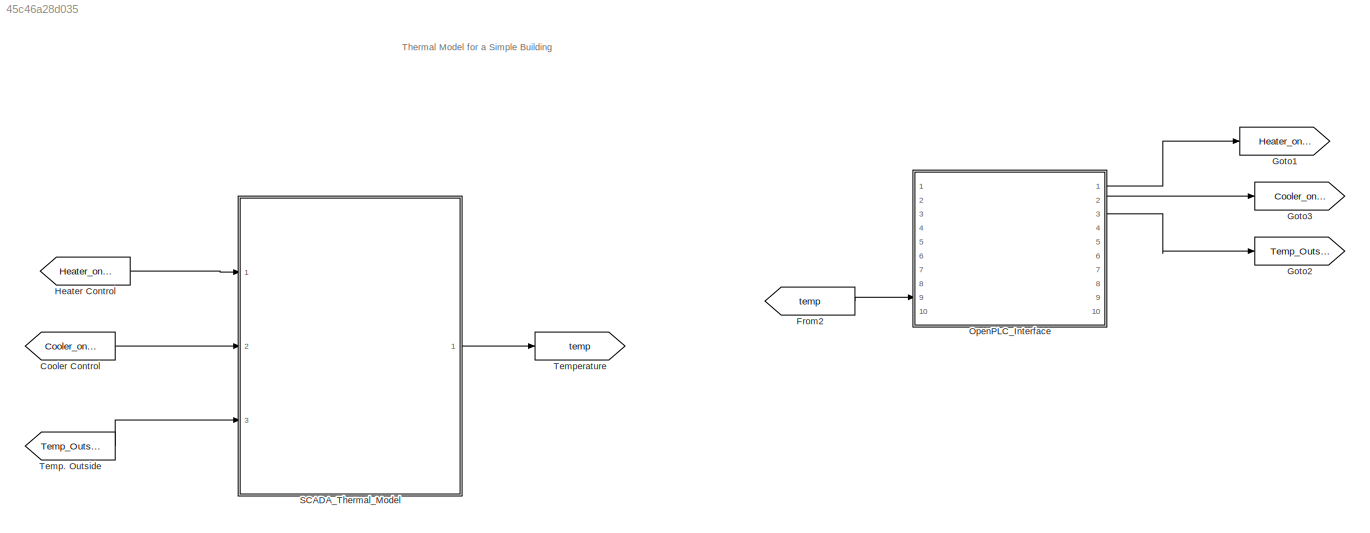
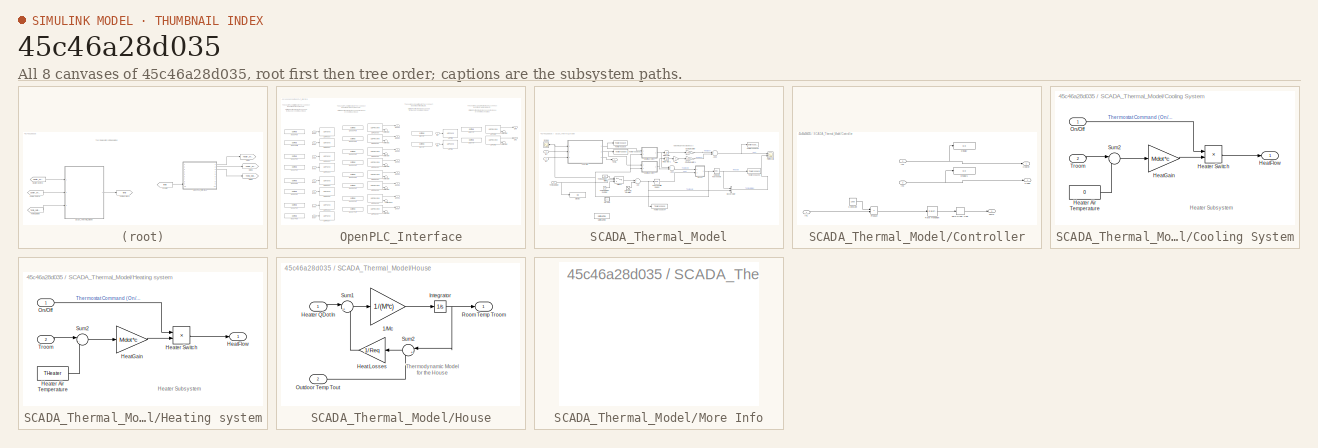
[diagram: thumbnail index - all 8 canvases of the model, root first then tree order]
MODEL slx_45c46a28d035
KIND model
CONFIG AbsTol = 1e-6
CONFIG EnableMultiTasking = off
CONFIG FixedStep = auto
CONFIG MaxStep = auto
CONFIG MinStep = auto
CONFIG RelTol = 1e-3
CONFIG SampleTimeConstraint = Unconstrained
CONFIG Solver = FixedStepAuto
CONFIG SolverName = FixedStepAuto
CONFIG StartTime = 0.0
CONFIG StopTime = inf
WORKSPACE source: MATLAB code (in-file) + mxarray member
WORKSPACE code: sldemo_househeat_data
WORKSPACE LWall = 0.2
WORKSPACE LWindow = 0.01
WORKSPACE M = 1778.36911446
WORKSPACE Mdot = 3600
WORKSPACE PLC_IP_Address = 'localhost'
WORKSPACE RWall = 1.52148180317e-06
WORKSPACE RWindow = 5.93542260209e-07
WORKSPACE Req = 4.26975637751e-07
WORKSPACE THeater = 50
WORKSPACE TinIC = 20
WORKSPACE c = 1005.4
WORKSPACE cost = 2.5e-08
WORKSPACE densAir = 1.225
WORKSPACE htHouse = 4
WORKSPACE htWindows = 1
WORKSPACE kWall = 136.8
WORKSPACE kWindow = 2808
WORKSPACE lenHouse = 30
WORKSPACE numWindows = 6
WORKSPACE pitRoof = 0.698131700798
WORKSPACE r2d = 57.2957795131
WORKSPACE wallArea = 960.897659797
WORKSPACE widHouse = 10
WORKSPACE widWindows = 1
WORKSPACE windowArea = 6
BLOCK [From] Cooler Control 
  GotoTag = Cooler_onoff
BLOCK [From] From2
  GotoTag = temp
BLOCK [Goto] Goto1
  GotoTag = Heater_onoff
BLOCK [Goto] Goto2
  GotoTag = Temp_Outside
BLOCK [Goto] Goto3
  GotoTag = Cooler_onoff
BLOCK [From] Heater Control
  GotoTag = Heater_onoff
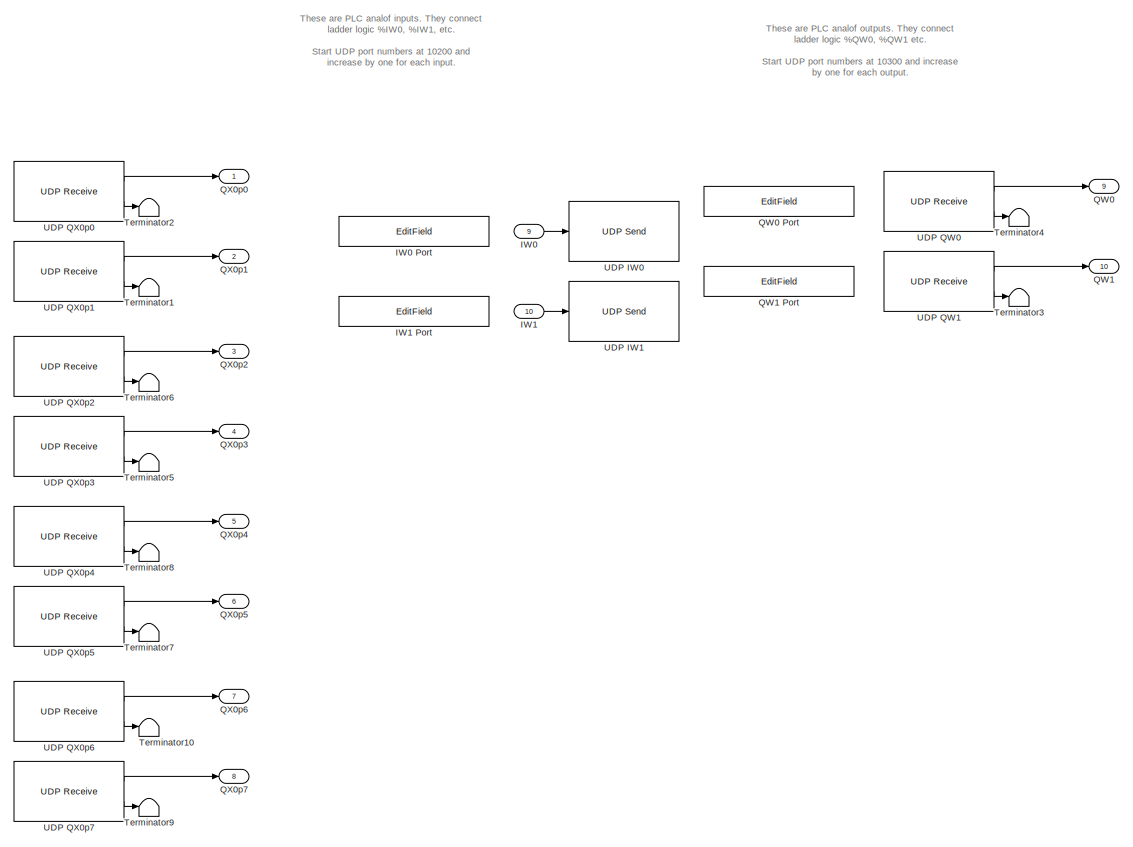
[diagram: OpenPLC_Interface - part 1/2, right side, full height]
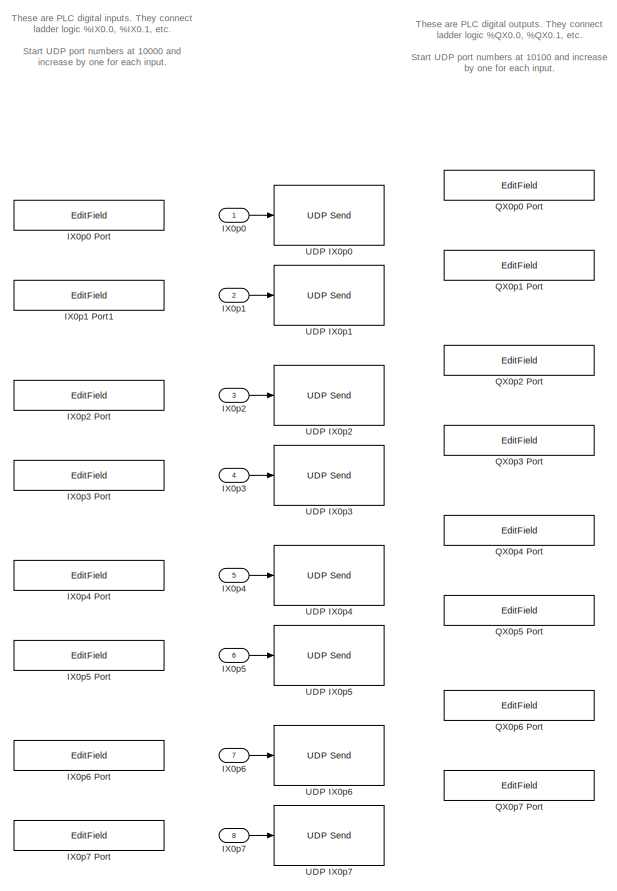
[diagram: OpenPLC_Interface - part 2/2, left side, full height]
BLOCK [SubSystem] OpenPLC_Interface
  Ports = [10, 10]
  RequestExecContextInheritance = off
BLOCK [Inport] OpenPLC_Interface/IW0
  IconDisplay = Port number
  Port = 9
BLOCK [EditField] OpenPLC_Interface/IW0 Port
  Alignment = Center
  LabelPosition = Hide
  ShowInitialText = on
BLOCK [Inport] OpenPLC_Interface/IW1
  IconDisplay = Port number
  Port = 10
BLOCK [EditField] OpenPLC_Interface/IW1 Port
  Alignment = Center
  LabelPosition = Hide
  ShowInitialText = on
BLOCK [Inport] OpenPLC_Interface/IX0p0 
  IconDisplay = Port number
BLOCK [EditField] OpenPLC_Interface/IX0p0 Port
  Alignment = Center
  LabelPosition = Hide
  ShowInitialText = on
BLOCK [Inport] OpenPLC_Interface/IX0p1
  IconDisplay = Port number
  Port = 2
BLOCK [EditField] OpenPLC_Interface/IX0p1 Port1
  Alignment = Center
  LabelPosition = Hide
  ShowInitialText = on
BLOCK [Inport] OpenPLC_Interface/IX0p2
  IconDisplay = Port number
  Port = 3
BLOCK [EditField] OpenPLC_Interface/IX0p2 Port
  Alignment = Center
  LabelPosition = Hide
  ShowInitialText = on
BLOCK [Inport] OpenPLC_Interface/IX0p3
  IconDisplay = Port number
  Port = 4
BLOCK [EditField] OpenPLC_Interface/IX0p3 Port
  Alignment = Center
  LabelPosition = Hide
  ShowInitialText = on
BLOCK [Inport] OpenPLC_Interface/IX0p4
  IconDisplay = Port number
  Port = 5
BLOCK [EditField] OpenPLC_Interface/IX0p4 Port
  Alignment = Center
  LabelPosition = Hide
  ShowInitialText = on
BLOCK [Inport] OpenPLC_Interface/IX0p5
  IconDisplay = Port number
  Port = 6
BLOCK [EditField] OpenPLC_Interface/IX0p5 Port
  Alignment = Center
  LabelPosition = Hide
  ShowInitialText = on
BLOCK [Inport] OpenPLC_Interface/IX0p6
  IconDisplay = Port number
  Port = 7
BLOCK [EditField] OpenPLC_Interface/IX0p6 Port
  Alignment = Center
  LabelPosition = Hide
  ShowInitialText = on
BLOCK [Inport] OpenPLC_Interface/IX0p7
  IconDisplay = Port number
  Port = 8
BLOCK [EditField] OpenPLC_Interface/IX0p7 Port
  Alignment = Center
  LabelPosition = Hide
  ShowInitialText = on
BLOCK [Outport] OpenPLC_Interface/QW0
  IconDisplay = Port number
  Port = 9
BLOCK [EditField] OpenPLC_Interface/QW0 Port
  Alignment = Center
  LabelPosition = Hide
  ShowInitialText = on
BLOCK [Outport] OpenPLC_Interface/QW1
  IconDisplay = Port number
  Port = 10
BLOCK [EditField] OpenPLC_Interface/QW1 Port
  Alignment = Center
  LabelPosition = Hide
  ShowInitialText = on
BLOCK [Outport] OpenPLC_Interface/QX0p0
  IconDisplay = Port number
BLOCK [EditField] OpenPLC_Interface/QX0p0 Port
  Alignment = Center
  LabelPosition = Hide
  ShowInitialText = on
BLOCK [Outport] OpenPLC_Interface/QX0p1
  IconDisplay = Port number
  Port = 2
BLOCK [EditField] OpenPLC_Interface/QX0p1 Port
  Alignment = Center
  LabelPosition = Hide
  ShowInitialText = on
BLOCK [Outport] OpenPLC_Interface/QX0p2
  IconDisplay = Port number
  Port = 3
BLOCK [EditField] OpenPLC_Interface/QX0p2 Port
  Alignment = Center
  LabelPosition = Hide
  ShowInitialText = on
BLOCK [Outport] OpenPLC_Interface/QX0p3
  IconDisplay = Port number
  Port = 4
BLOCK [EditField] OpenPLC_Interface/QX0p3 Port
  Alignment = Center
  LabelPosition = Hide
  ShowInitialText = on
BLOCK [Outport] OpenPLC_Interface/QX0p4
  IconDisplay = Port number
  Port = 5
BLOCK [EditField] OpenPLC_Interface/QX0p4 Port
  Alignment = Center
  LabelPosition = Hide
  ShowInitialText = on
BLOCK [Outport] OpenPLC_Interface/QX0p5
  IconDisplay = Port number
  Port = 6
BLOCK [EditField] OpenPLC_Interface/QX0p5 Port
  Alignment = Center
  LabelPosition = Hide
  ShowInitialText = on
BLOCK [Outport] OpenPLC_Interface/QX0p6
  IconDisplay = Port number
  Port = 7
BLOCK [EditField] OpenPLC_Interface/QX0p6 Port
  Alignment = Center
  LabelPosition = Hide
  ShowInitialText = on
BLOCK [Outport] OpenPLC_Interface/QX0p7
  IconDisplay = Port number
  Port = 8
BLOCK [EditField] OpenPLC_Interface/QX0p7 Port
  Alignment = Center
  LabelPosition = Hide
  ShowInitialText = on
BLOCK [Terminator] OpenPLC_Interface/Terminator1
BLOCK [Terminator] OpenPLC_Interface/Terminator10
BLOCK [Terminator] OpenPLC_Interface/Terminator2
BLOCK [Terminator] OpenPLC_Interface/Terminator3
BLOCK [Terminator] OpenPLC_Interface/Terminator4
BLOCK [Terminator] OpenPLC_Interface/Terminator5
BLOCK [Terminator] OpenPLC_Interface/Terminator6
BLOCK [Terminator] OpenPLC_Interface/Terminator7
BLOCK [Terminator] OpenPLC_Interface/Terminator8
BLOCK [Terminator] OpenPLC_Interface/Terminator9
BLOCK [Reference] OpenPLC_Interface/UDP IW0  REF=dspnetwork/UDP Send
  Ports = [1]
  SourceBlock = dspnetwork/UDP Send
  SourceProductBaseCode = DS
  SourceProductName = DSP System Toolbox
  SourceType = UDP Send
BLOCK [Reference] OpenPLC_Interface/UDP IW1  REF=dspnetwork/UDP Send
  Ports = [1]
  SourceBlock = dspnetwork/UDP Send
  SourceProductBaseCode = DS
  SourceProductName = DSP System Toolbox
  SourceType = UDP Send
BLOCK [Reference] OpenPLC_Interface/UDP IX0p0  REF=dspnetwork/UDP Send
  Ports = [1]
  SourceBlock = dspnetwork/UDP Send
  SourceProductBaseCode = DS
  SourceProductName = DSP System Toolbox
  SourceType = UDP Send
BLOCK [Reference] OpenPLC_Interface/UDP IX0p1  REF=dspnetwork/UDP Send
  Ports = [1]
  SourceBlock = dspnetwork/UDP Send
  SourceProductBaseCode = DS
  SourceProductName = DSP System Toolbox
  SourceType = UDP Send
BLOCK [Reference] OpenPLC_Interface/UDP IX0p2  REF=dspnetwork/UDP Send
  Ports = [1]
  SourceBlock = dspnetwork/UDP Send
  SourceProductBaseCode = DS
  SourceProductName = DSP System Toolbox
  SourceType = UDP Send
BLOCK [Reference] OpenPLC_Interface/UDP IX0p3  REF=dspnetwork/UDP Send
  Ports = [1]
  SourceBlock = dspnetwork/UDP Send
  SourceProductBaseCode = DS
  SourceProductName = DSP System Toolbox
  SourceType = UDP Send
BLOCK [Reference] OpenPLC_Interface/UDP IX0p4  REF=dspnetwork/UDP Send
  Ports = [1]
  SourceBlock = dspnetwork/UDP Send
  SourceProductBaseCode = DS
  SourceProductName = DSP System Toolbox
  SourceType = UDP Send
BLOCK [Reference] OpenPLC_Interface/UDP IX0p5  REF=dspnetwork/UDP Send
  Ports = [1]
  SourceBlock = dspnetwork/UDP Send
  SourceProductBaseCode = DS
  SourceProductName = DSP System Toolbox
  SourceType = UDP Send
BLOCK [Reference] OpenPLC_Interface/UDP IX0p6  REF=dspnetwork/UDP Send
  Ports = [1]
  SourceBlock = dspnetwork/UDP Send
  SourceProductBaseCode = DS
  SourceProductName = DSP System Toolbox
  SourceType = UDP Send
BLOCK [Reference] OpenPLC_Interface/UDP IX0p7  REF=dspnetwork/UDP Send
  Ports = [1]
  SourceBlock = dspnetwork/UDP Send
  SourceProductBaseCode = DS
  SourceProductName = DSP System Toolbox
  SourceType = UDP Send
BLOCK [Reference] OpenPLC_Interface/UDP QW0  REF=dspnetwork/UDP Receive
  Ports = [0, 2]
  SourceBlock = dspnetwork/UDP Receive
  SourceProductBaseCode = DS
  SourceProductName = DSP System Toolbox
  SourceType = UDP Receive
BLOCK [Reference] OpenPLC_Interface/UDP QW1  REF=dspnetwork/UDP Receive
  Ports = [0, 2]
  SourceBlock = dspnetwork/UDP Receive
  SourceProductBaseCode = DS
  SourceProductName = DSP System Toolbox
  SourceType = UDP Receive
BLOCK [Reference] OpenPLC_Interface/UDP QX0p0  REF=dspnetwork/UDP Receive
  Ports = [0, 2]
  SourceBlock = dspnetwork/UDP Receive
  SourceProductBaseCode = DS
  SourceProductName = DSP System Toolbox
  SourceType = UDP Receive
BLOCK [Reference] OpenPLC_Interface/UDP QX0p1  REF=dspnetwork/UDP Receive
  Ports = [0, 2]
  SourceBlock = dspnetwork/UDP Receive
  SourceProductBaseCode = DS
  SourceProductName = DSP System Toolbox
  SourceType = UDP Receive
BLOCK [Reference] OpenPLC_Interface/UDP QX0p2  REF=dspnetwork/UDP Receive
  Ports = [0, 2]
  SourceBlock = dspnetwork/UDP Receive
  SourceProductBaseCode = DS
  SourceProductName = DSP System Toolbox
  SourceType = UDP Receive
BLOCK [Reference] OpenPLC_Interface/UDP QX0p3  REF=dspnetwork/UDP Receive
  Ports = [0, 2]
  SourceBlock = dspnetwork/UDP Receive
  SourceProductBaseCode = DS
  SourceProductName = DSP System Toolbox
  SourceType = UDP Receive
BLOCK [Reference] OpenPLC_Interface/UDP QX0p4  REF=dspnetwork/UDP Receive
  Ports = [0, 2]
  SourceBlock = dspnetwork/UDP Receive
  SourceProductBaseCode = DS
  SourceProductName = DSP System Toolbox
  SourceType = UDP Receive
BLOCK [Reference] OpenPLC_Interface/UDP QX0p5  REF=dspnetwork/UDP Receive
  Ports = [0, 2]
  SourceBlock = dspnetwork/UDP Receive
  SourceProductBaseCode = DS
  SourceProductName = DSP System Toolbox
  SourceType = UDP Receive
BLOCK [Reference] OpenPLC_Interface/UDP QX0p6  REF=dspnetwork/UDP Receive
  Ports = [0, 2]
  SourceBlock = dspnetwork/UDP Receive
  SourceProductBaseCode = DS
  SourceProductName = DSP System Toolbox
  SourceType = UDP Receive
BLOCK [Reference] OpenPLC_Interface/UDP QX0p7  REF=dspnetwork/UDP Receive
  Ports = [0, 2]
  SourceBlock = dspnetwork/UDP Receive
  SourceProductBaseCode = DS
  SourceProductName = DSP System Toolbox
  SourceType = UDP Receive
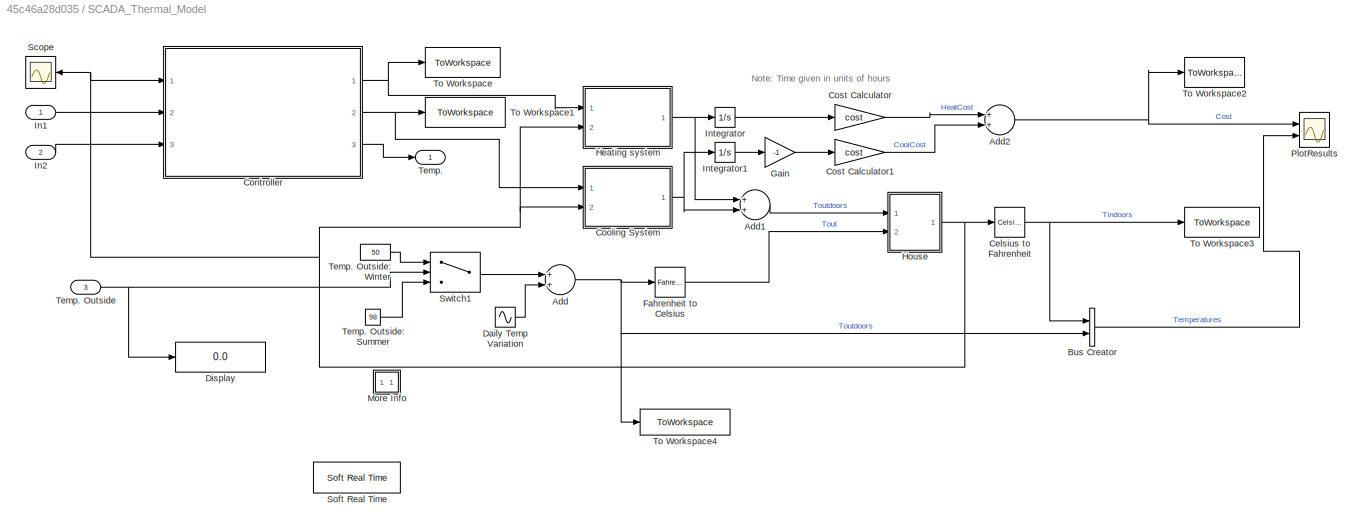
BLOCK [SubSystem] SCADA_Thermal_Model
  Ports = [3, 1]
  RequestExecContextInheritance = off
BLOCK [Sum] SCADA_Thermal_Model/Add
  InputSameDT = off
  OutDataTypeStr = Inherit: Inherit via internal rule
  Ports = [2, 1]
  SaturateOnIntegerOverflow = off
BLOCK [Sum] SCADA_Thermal_Model/Add1
  InputSameDT = off
  OutDataTypeStr = Inherit: Inherit via internal rule
  Ports = [2, 1]
  SaturateOnIntegerOverflow = off
BLOCK [Sum] SCADA_Thermal_Model/Add2
  InputSameDT = off
  OutDataTypeStr = Inherit: Inherit via internal rule
  Ports = [2, 1]
  SaturateOnIntegerOverflow = off
BLOCK [BusCreator] SCADA_Thermal_Model/Bus Creator
  DisplayOption = bar
  InheritFromInputs = on
  Inputs = 2
  Ports = [2, 1]
BLOCK [Reference] SCADA_Thermal_Model/Celsius to Fahrenheit  REF=simulink_extras/Transformations/Celsius to
Fahrenheit
  Ports = [1, 1]
  SourceBlock = simulink_extras/Transformations/Celsius to\nFahrenheit
  SourceProductBaseCode = SL
  SourceProductName = Simulink
  SourceType = CelsiusToFahrenheit
BLOCK [SubSystem] SCADA_Thermal_Model/Controller
  Ports = [3, 3]
  RequestExecContextInheritance = off
BLOCK [Constant] SCADA_Thermal_Model/Controller/Constant
  Value = 1000
BLOCK [Outport] SCADA_Thermal_Model/Controller/Cooler
  IconDisplay = Port number
  Port = 2
  VectorParamsAs1DForOutWhenUnconnected = off
BLOCK [Display] SCADA_Thermal_Model/Controller/Display
  Decimation = 1
  Ports = [1]
BLOCK [Display] SCADA_Thermal_Model/Controller/Display1
  Decimation = 1
  Ports = [1]
BLOCK [Outport] SCADA_Thermal_Model/Controller/Heater
  IconDisplay = Port number
  VectorParamsAs1DForOutWhenUnconnected = off
BLOCK [Inport] SCADA_Thermal_Model/Controller/In1
  IconDisplay = Port number
BLOCK [Inport] SCADA_Thermal_Model/Controller/In2
  IconDisplay = Port number
  Port = 2
BLOCK [Inport] SCADA_Thermal_Model/Controller/In3
  IconDisplay = Port number
  Port = 3
BLOCK [Product] SCADA_Thermal_Model/Controller/Product
  InputSameDT = off
  OutDataTypeStr = Inherit: Inherit via internal rule
  Ports = [2, 1]
  RndMeth = Floor
  SaturateOnIntegerOverflow = off
BLOCK [RateTransition] SCADA_Thermal_Model/Controller/Rate Transition
BLOCK [Outport] SCADA_Thermal_Model/Controller/Temp.
  IconDisplay = Port number
  Port = 3
  VectorParamsAs1DForOutWhenUnconnected = off
BLOCK [ZeroOrderHold] SCADA_Thermal_Model/Controller/Zero-Order Hold
  SampleTime = 0.005
BLOCK [SubSystem] SCADA_Thermal_Model/Cooling System
  Ports = [2, 1]
  RequestExecContextInheritance = off
BLOCK [Outport] SCADA_Thermal_Model/Cooling System/HeatFlow
  IconDisplay = Port number
  VectorParamsAs1DForOutWhenUnconnected = off
BLOCK [Gain] SCADA_Thermal_Model/Cooling System/HeatGain
  Gain = Mdot*c
  OutDataTypeStr = Inherit: Inherit via internal rule
  ParamDataTypeStr = Inherit: Inherit via internal rule
  SaturateOnIntegerOverflow = off
BLOCK [Constant] SCADA_Thermal_Model/Cooling System/Heater Air Temperature
  Value = 0
BLOCK [Product] SCADA_Thermal_Model/Cooling System/Heater Switch
  InputSameDT = off
  OutDataTypeStr = Inherit: Inherit via internal rule
  Ports = [2, 1]
  SaturateOnIntegerOverflow = off
BLOCK [Inport] SCADA_Thermal_Model/Cooling System/On//Off
  IconDisplay = Port number
BLOCK [Sum] SCADA_Thermal_Model/Cooling System/Sum2
  IconShape = round
  InputSameDT = off
  Inputs = |-+
  OutDataTypeStr = Inherit: Inherit via internal rule
  Ports = [2, 1]
  SaturateOnIntegerOverflow = off
BLOCK [Inport] SCADA_Thermal_Model/Cooling System/Troom
  IconDisplay = Port number
  Port = 2
BLOCK [Gain] SCADA_Thermal_Model/Cost Calculator
  Gain = cost
BLOCK [Gain] SCADA_Thermal_Model/Cost Calculator1
  Gain = cost
BLOCK [Sin] SCADA_Thermal_Model/Daily Temp Variation
  Frequency = 2*pi/24
  Ports = [0, 1]
  SampleTime = 0
BLOCK [Display] SCADA_Thermal_Model/Display
  Decimation = 1
  Ports = [1]
BLOCK [Reference] SCADA_Thermal_Model/Fahrenheit to Celsius  REF=simulink_extras/Transformations/Fahrenheit
to Celsius
  Ports = [1, 1]
  SourceBlock = simulink_extras/Transformations/Fahrenheit\nto Celsius
  SourceProductBaseCode = SL
  SourceProductName = Simulink
  SourceType = FahrenheitToCelsius
BLOCK [Gain] SCADA_Thermal_Model/Gain
  Gain = -1
  OutDataTypeStr = Inherit: Inherit via internal rule
  ParamDataTypeStr = Inherit: Inherit via internal rule
  SaturateOnIntegerOverflow = off
BLOCK [SubSystem] SCADA_Thermal_Model/Heating system
  Ports = [2, 1]
  RequestExecContextInheritance = off
BLOCK [Outport] SCADA_Thermal_Model/Heating system/HeatFlow
  IconDisplay = Port number
  VectorParamsAs1DForOutWhenUnconnected = off
BLOCK [Gain] SCADA_Thermal_Model/Heating system/HeatGain
  Gain = Mdot*c
  OutDataTypeStr = Inherit: Inherit via internal rule
  ParamDataTypeStr = Inherit: Inherit via internal rule
  SaturateOnIntegerOverflow = off
BLOCK [Constant] SCADA_Thermal_Model/Heating system/Heater Air Temperature
  Value = THeater
BLOCK [Product] SCADA_Thermal_Model/Heating system/Heater Switch
  InputSameDT = off
  OutDataTypeStr = Inherit: Inherit via internal rule
  Ports = [2, 1]
  SaturateOnIntegerOverflow = off
BLOCK [Inport] SCADA_Thermal_Model/Heating system/On//Off
  IconDisplay = Port number
BLOCK [Sum] SCADA_Thermal_Model/Heating system/Sum2
  IconShape = round
  InputSameDT = off
  Inputs = |-+
  OutDataTypeStr = Inherit: Inherit via internal rule
  Ports = [2, 1]
  SaturateOnIntegerOverflow = off
BLOCK [Inport] SCADA_Thermal_Model/Heating system/Troom
  IconDisplay = Port number
  Port = 2
BLOCK [SubSystem] SCADA_Thermal_Model/House
  Ports = [2, 1]
  RequestExecContextInheritance = off
BLOCK [Gain] SCADA_Thermal_Model/House/1//Mc
  Gain = 1/(M*c)
BLOCK [Gain] SCADA_Thermal_Model/House/Heat Losses
  Gain = 1/Req
BLOCK [Inport] SCADA_Thermal_Model/House/Heater QDot In
  IconDisplay = Port number
BLOCK [Integrator] SCADA_Thermal_Model/House/Integrator
  InitialCondition = TinIC
  Ports = [1, 1]
BLOCK [Inport] SCADA_Thermal_Model/House/Outdoor Temp Tout
  IconDisplay = Port number
  Port = 2
BLOCK [Outport] SCADA_Thermal_Model/House/Room Temp Troom
  IconDisplay = Port number
  InitialOutput = 0
  VectorParamsAs1DForOutWhenUnconnected = off
BLOCK [Sum] SCADA_Thermal_Model/House/Sum1
  IconShape = round
  Inputs = |+-
  Ports = [2, 1]
BLOCK [Sum] SCADA_Thermal_Model/House/Sum2
  IconShape = round
  Inputs = |+-
  Ports = [2, 1]
BLOCK [Inport] SCADA_Thermal_Model/In1
  IconDisplay = Port number
BLOCK [Inport] SCADA_Thermal_Model/In2
  IconDisplay = Port number
  Port = 2
BLOCK [Integrator] SCADA_Thermal_Model/Integrator
  Ports = [1, 1]
BLOCK [Integrator] SCADA_Thermal_Model/Integrator1
  Ports = [1, 1]
BLOCK [SubSystem] SCADA_Thermal_Model/More Info
  OpenFcn = showExample('simulink_general/sldemo_househeatExample')
  Ports = []
  RequestExecContextInheritance = off
BLOCK [Scope] SCADA_Thermal_Model/PlotResults
  Floating = off
  NumInputPorts = 2
  Ports = [2]
  ScopeSpecificationString = Simulink.scopes.TimeScopeBlockCfg('CurrentConfiguration', extmgr.ConfigurationSet(extmgr.Configuration('Core','General UI',true),extmgr.Configuration('Core','Source UI',true),extmgr.Configuration('Sources','WiredSimulink',true,'DataLoggingVariableName','a','DataLoggingSaveFormat','Array','DataLoggingDecimation','1','DataLoggingDecimateData',true),extmgr.Configuration('Visuals','Time Domain',true,'...<+2304ch>
BLOCK [Scope] SCADA_Thermal_Model/Scope
  Floating = off
  NumInputPorts = 1
  Ports = [1]
  ScopeSpecificationString = Simulink.scopes.TimeScopeBlockCfg('CurrentConfiguration', extmgr.ConfigurationSet(extmgr.Configuration('Core','General UI',true),extmgr.Configuration('Core','Source UI',true),extmgr.Configuration('Sources','WiredSimulink',true,'DataLoggingVariableName','ScopeData1'),extmgr.Configuration('Visuals','Time Domain',true,'SerializedDisplays',{struct('MinYLimReal','33.29745','MaxYLimReal','33.35976','YLa...<+1476ch>
BLOCK [Reference] SCADA_Thermal_Model/Soft Real Time  REF=utility/Soft Real Time  (lib defined in slx_8818c3a16fdf)
  Ports = []
  SourceBlock = utility/Soft Real Time
  SourceProductName = Soft Real Time Lib
BLOCK [Switch] SCADA_Thermal_Model/Switch1
  InputSameDT = off
  SaturateOnIntegerOverflow = off
  Threshold = 1
BLOCK [Outport] SCADA_Thermal_Model/Temp.
  IconDisplay = Port number
  VectorParamsAs1DForOutWhenUnconnected = off
BLOCK [Inport] SCADA_Thermal_Model/Temp. Outside
  IconDisplay = Port number
  Port = 3
BLOCK [Constant] SCADA_Thermal_Model/Temp. Outside: Summer
  Value = 98
BLOCK [Constant] SCADA_Thermal_Model/Temp. Outside: Winter
  Value = 50
BLOCK [ToWorkspace] SCADA_Thermal_Model/To Workspace
  FixptAsFi = on
  MaxDataPoints = inf
  Ports = [1]
  SampleTime = .005
  SaveFormat = Timeseries
  VariableName = HeatActuatorHnC
BLOCK [ToWorkspace] SCADA_Thermal_Model/To Workspace1
  FixptAsFi = on
  MaxDataPoints = inf
  Ports = [1]
  SampleTime = .005
  SaveFormat = Timeseries
  VariableName = CoolingActuatorHnC
BLOCK [ToWorkspace] SCADA_Thermal_Model/To Workspace2
  FixptAsFi = on
  MaxDataPoints = inf
  Ports = [1]
  SampleTime = .005
  SaveFormat = Timeseries
  VariableName = CostHnC
BLOCK [ToWorkspace] SCADA_Thermal_Model/To Workspace3
  FixptAsFi = on
  MaxDataPoints = inf
  Ports = [1]
  SampleTime = .005
  SaveFormat = Timeseries
  VariableName = InsideTempHnC
BLOCK [ToWorkspace] SCADA_Thermal_Model/To Workspace4
  FixptAsFi = on
  MaxDataPoints = inf
  Ports = [1]
  SampleTime = .005
  SaveFormat = Timeseries
  VariableName = OutsideTempHnC
BLOCK [From] Temp. Outside
  GotoTag = Temp_Outside
BLOCK [Goto] Temperature
  GotoTag = temp
ANNOTATION (root): Thermal Model for a Simple Building
ANNOTATION OpenPLC_Interface: These are PLC analof inputs. They connect ladder logic %IW0, %IW1, etc. Start UDP port numbers at 10200 and increase by one for each input. Update model variable PLC_IP_Address to set PLC ip address.
ANNOTATION OpenPLC_Interface: These are PLC analof outputs. They connect ladder logic %QW0, %QW1 etc. Start UDP port numbers at 10300 and increase by one for each output.
ANNOTATION OpenPLC_Interface: These are PLC digital inputs. They connect ladder logic %IX0.0, %IX0.1, etc. Start UDP port numbers at 10000 and increase by one for each input. Update model variable PLC_IP_Address to set PLC ip address.
ANNOTATION OpenPLC_Interface: These are PLC digital outputs. They connect ladder logic %QX0.0, %QX0.1, etc. Start UDP port numbers at 10100 and increase by one for each input.
ANNOTATION SCADA_Thermal_Model: Note: Time given in units of hours
ANNOTATION SCADA_Thermal_Model/Cooling System: Heater Subsystem
ANNOTATION SCADA_Thermal_Model/Heating system: Heater Subsystem
ANNOTATION SCADA_Thermal_Model/House: Thermodynamic Model for the House
LINE Cooler Control :1 -> SCADA_Thermal_Model:2
LINE From2:1 -> OpenPLC_Interface:9
LINE Heater Control:1 -> SCADA_Thermal_Model:1
LINE OpenPLC_Interface/IW0:1 -> OpenPLC_Interface/UDP IW0:1
LINE OpenPLC_Interface/IW1:1 -> OpenPLC_Interface/UDP IW1:1
LINE OpenPLC_Interface/IX0p0 :1 -> OpenPLC_Interface/UDP IX0p0:1
LINE OpenPLC_Interface/IX0p1:1 -> OpenPLC_Interface/UDP IX0p1:1
LINE OpenPLC_Interface/IX0p2:1 -> OpenPLC_Interface/UDP IX0p2:1
LINE OpenPLC_Interface/IX0p3:1 -> OpenPLC_Interface/UDP IX0p3:1
LINE OpenPLC_Interface/IX0p4:1 -> OpenPLC_Interface/UDP IX0p4:1
LINE OpenPLC_Interface/IX0p5:1 -> OpenPLC_Interface/UDP IX0p5:1
LINE OpenPLC_Interface/IX0p6:1 -> OpenPLC_Interface/UDP IX0p6:1
LINE OpenPLC_Interface/IX0p7:1 -> OpenPLC_Interface/UDP IX0p7:1
LINE OpenPLC_Interface/UDP QW0:1 -> OpenPLC_Interface/QW0:1
LINE OpenPLC_Interface/UDP QW0:2 -> OpenPLC_Interface/Terminator4:1
LINE OpenPLC_Interface/UDP QW1:1 -> OpenPLC_Interface/QW1:1
LINE OpenPLC_Interface/UDP QW1:2 -> OpenPLC_Interface/Terminator3:1
LINE OpenPLC_Interface/UDP QX0p0:1 -> OpenPLC_Interface/QX0p0:1
LINE OpenPLC_Interface/UDP QX0p0:2 -> OpenPLC_Interface/Terminator2:1
LINE OpenPLC_Interface/UDP QX0p1:1 -> OpenPLC_Interface/QX0p1:1
LINE OpenPLC_Interface/UDP QX0p1:2 -> OpenPLC_Interface/Terminator1:1
LINE OpenPLC_Interface/UDP QX0p2:1 -> OpenPLC_Interface/QX0p2:1
LINE OpenPLC_Interface/UDP QX0p2:2 -> OpenPLC_Interface/Terminator6:1
LINE OpenPLC_Interface/UDP QX0p3:1 -> OpenPLC_Interface/QX0p3:1
LINE OpenPLC_Interface/UDP QX0p3:2 -> OpenPLC_Interface/Terminator5:1
LINE OpenPLC_Interface/UDP QX0p4:1 -> OpenPLC_Interface/QX0p4:1
LINE OpenPLC_Interface/UDP QX0p4:2 -> OpenPLC_Interface/Terminator8:1
LINE OpenPLC_Interface/UDP QX0p5:1 -> OpenPLC_Interface/QX0p5:1
LINE OpenPLC_Interface/UDP QX0p5:2 -> OpenPLC_Interface/Terminator7:1
LINE OpenPLC_Interface/UDP QX0p6:1 -> OpenPLC_Interface/QX0p6:1
LINE OpenPLC_Interface/UDP QX0p6:2 -> OpenPLC_Interface/Terminator10:1
LINE OpenPLC_Interface/UDP QX0p7:1 -> OpenPLC_Interface/QX0p7:1
LINE OpenPLC_Interface/UDP QX0p7:2 -> OpenPLC_Interface/Terminator9:1
LINE OpenPLC_Interface:1 -> Goto1:1
LINE OpenPLC_Interface:2 -> Goto3:1
LINE OpenPLC_Interface:3 -> Goto2:1
LINE SCADA_Thermal_Model/Add1:1 -> SCADA_Thermal_Model/House:1
NET SCADA_Thermal_Model/Add2:1 -> SCADA_Thermal_Model/PlotResults:1, SCADA_Thermal_Model/To Workspace2:1
NET SCADA_Thermal_Model/Add:1 -> SCADA_Thermal_Model/Bus Creator:2, SCADA_Thermal_Model/Fahrenheit to Celsius:1, SCADA_Thermal_Model/To Workspace4:1
LINE SCADA_Thermal_Model/Bus Creator:1 -> SCADA_Thermal_Model/PlotResults:2
NET SCADA_Thermal_Model/Celsius to Fahrenheit:1 -> SCADA_Thermal_Model/Bus Creator:1, SCADA_Thermal_Model/To Workspace3:1
LINE SCADA_Thermal_Model/Controller/Constant:1 -> SCADA_Thermal_Model/Controller/Product:1
LINE SCADA_Thermal_Model/Controller/In1:1 -> SCADA_Thermal_Model/Controller/Product:2
NET SCADA_Thermal_Model/Controller/In2:1 -> SCADA_Thermal_Model/Controller/Display:1, SCADA_Thermal_Model/Controller/Heater:1
NET SCADA_Thermal_Model/Controller/In3:1 -> SCADA_Thermal_Model/Controller/Cooler:1, SCADA_Thermal_Model/Controller/Display1:1
LINE SCADA_Thermal_Model/Controller/Product:1 -> SCADA_Thermal_Model/Controller/Rate Transition:1
LINE SCADA_Thermal_Model/Controller/Rate Transition:1 -> SCADA_Thermal_Model/Controller/Zero-Order Hold:1
LINE SCADA_Thermal_Model/Controller/Zero-Order Hold:1 -> SCADA_Thermal_Model/Controller/Temp.:1
NET SCADA_Thermal_Model/Controller:1 -> SCADA_Thermal_Model/Heating system:1, SCADA_Thermal_Model/To Workspace:1
NET SCADA_Thermal_Model/Controller:2 -> SCADA_Thermal_Model/Cooling System:1, SCADA_Thermal_Model/To Workspace1:1
LINE SCADA_Thermal_Model/Controller:3 -> SCADA_Thermal_Model/Temp.:1
LINE SCADA_Thermal_Model/Cooling System/HeatGain:1 -> SCADA_Thermal_Model/Cooling System/Heater Switch:2
LINE SCADA_Thermal_Model/Cooling System/Heater Air Temperature:1 -> SCADA_Thermal_Model/Cooling System/Sum2:2
LINE SCADA_Thermal_Model/Cooling System/Heater Switch:1 -> SCADA_Thermal_Model/Cooling System/HeatFlow:1
LINE SCADA_Thermal_Model/Cooling System/On//Off:1 -> SCADA_Thermal_Model/Cooling System/Heater Switch:1
LINE SCADA_Thermal_Model/Cooling System/Sum2:1 -> SCADA_Thermal_Model/Cooling System/HeatGain:1
LINE SCADA_Thermal_Model/Cooling System/Troom:1 -> SCADA_Thermal_Model/Cooling System/Sum2:1
NET SCADA_Thermal_Model/Cooling System:1 -> SCADA_Thermal_Model/Add1:2, SCADA_Thermal_Model/Integrator1:1
LINE SCADA_Thermal_Model/Cost Calculator1:1 -> SCADA_Thermal_Model/Add2:2
LINE SCADA_Thermal_Model/Cost Calculator:1 -> SCADA_Thermal_Model/Add2:1
LINE SCADA_Thermal_Model/Daily Temp Variation:1 -> SCADA_Thermal_Model/Add:2
LINE SCADA_Thermal_Model/Fahrenheit to Celsius:1 -> SCADA_Thermal_Model/House:2
LINE SCADA_Thermal_Model/Gain:1 -> SCADA_Thermal_Model/Cost Calculator1:1
LINE SCADA_Thermal_Model/Heating system/HeatGain:1 -> SCADA_Thermal_Model/Heating system/Heater Switch:2
LINE SCADA_Thermal_Model/Heating system/Heater Air Temperature:1 -> SCADA_Thermal_Model/Heating system/Sum2:2
LINE SCADA_Thermal_Model/Heating system/Heater Switch:1 -> SCADA_Thermal_Model/Heating system/HeatFlow:1
LINE SCADA_Thermal_Model/Heating system/On//Off:1 -> SCADA_Thermal_Model/Heating system/Heater Switch:1
LINE SCADA_Thermal_Model/Heating system/Sum2:1 -> SCADA_Thermal_Model/Heating system/HeatGain:1
LINE SCADA_Thermal_Model/Heating system/Troom:1 -> SCADA_Thermal_Model/Heating system/Sum2:1
NET SCADA_Thermal_Model/Heating system:1 -> SCADA_Thermal_Model/Add1:1, SCADA_Thermal_Model/Integrator:1
LINE SCADA_Thermal_Model/House/1//Mc:1 -> SCADA_Thermal_Model/House/Integrator:1
LINE SCADA_Thermal_Model/House/Heat Losses:1 -> SCADA_Thermal_Model/House/Sum1:2
LINE SCADA_Thermal_Model/House/Heater QDot In:1 -> SCADA_Thermal_Model/House/Sum1:1
NET SCADA_Thermal_Model/House/Integrator:1 -> SCADA_Thermal_Model/House/Room Temp Troom:1, SCADA_Thermal_Model/House/Sum2:1
LINE SCADA_Thermal_Model/House/Outdoor Temp Tout:1 -> SCADA_Thermal_Model/House/Sum2:2
LINE SCADA_Thermal_Model/House/Sum1:1 -> SCADA_Thermal_Model/House/1//Mc:1
LINE SCADA_Thermal_Model/House/Sum2:1 -> SCADA_Thermal_Model/House/Heat Losses:1
NET SCADA_Thermal_Model/House:1 -> SCADA_Thermal_Model/Celsius to Fahrenheit:1, SCADA_Thermal_Model/Controller:1, SCADA_Thermal_Model/Cooling System:2, SCADA_Thermal_Model/Heating system:2, SCADA_Thermal_Model/Scope:1
LINE SCADA_Thermal_Model/In1:1 -> SCADA_Thermal_Model/Controller:2
LINE SCADA_Thermal_Model/In2:1 -> SCADA_Thermal_Model/Controller:3
LINE SCADA_Thermal_Model/Integrator1:1 -> SCADA_Thermal_Model/Gain:1
LINE SCADA_Thermal_Model/Integrator:1 -> SCADA_Thermal_Model/Cost Calculator:1
LINE SCADA_Thermal_Model/Switch1:1 -> SCADA_Thermal_Model/Add:1
LINE SCADA_Thermal_Model/Temp. Outside: Summer:1 -> SCADA_Thermal_Model/Switch1:3
LINE SCADA_Thermal_Model/Temp. Outside: Winter:1 -> SCADA_Thermal_Model/Switch1:1
NET SCADA_Thermal_Model/Temp. Outside:1 -> SCADA_Thermal_Model/Display:1, SCADA_Thermal_Model/Switch1:2
LINE SCADA_Thermal_Model:1 -> Temperature:1
LINE Temp. Outside:1 -> SCADA_Thermal_Model:3
note: NET lines group one-source signal fan-out (src -> all destinations, sorted); 1:1 wires keep LINE
